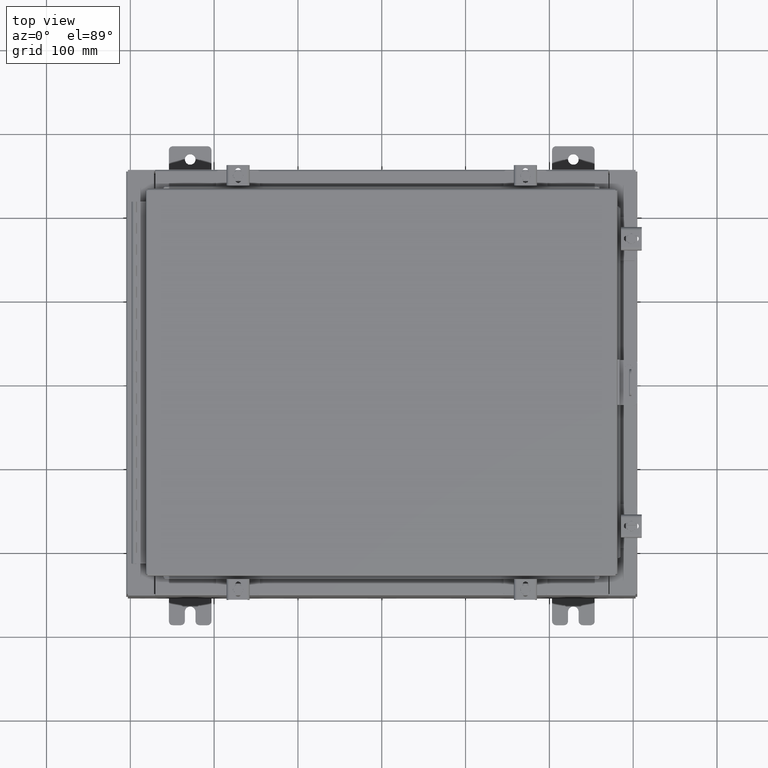
[diagram: clean part render]
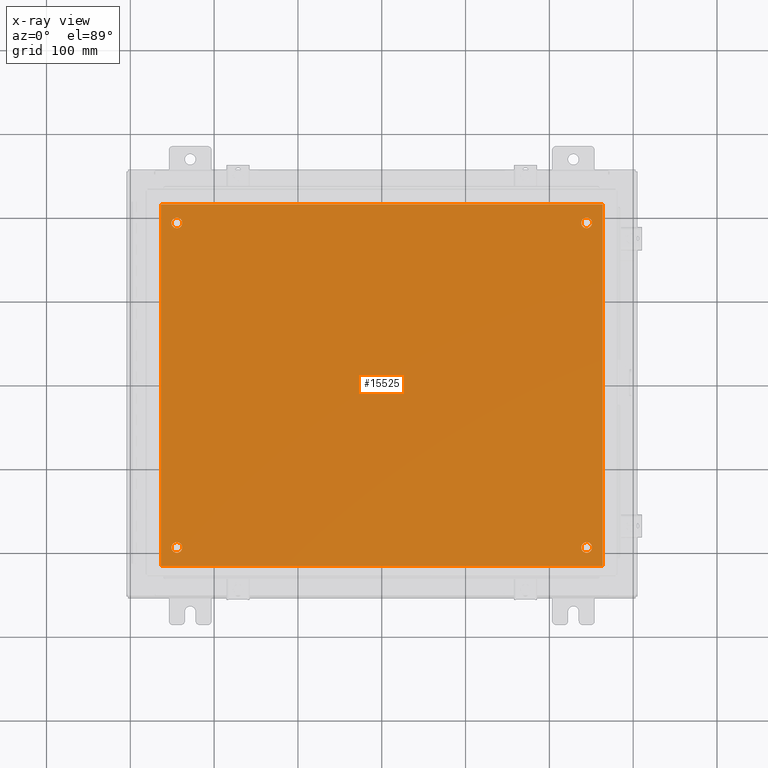
[diagram: x-ray — body ghosted, one internal face saturated and labeled with its STEP entity id]
A machine part, top view, then the same camera in x-ray: the body is ghosted and one INTERNAL B-rep face — a face not visible from any outside direction — is saturated and labeled: STEP entity #15525.
In plain terms, the highlighted planar face has unit normal (0, 0, -1).
Its self-contained STEP definition (entity closure, byte-faithful):
#83 = AXIS2_PLACEMENT_3D ( 'NONE', #26273, #12641, #28555 ) ;
#87 = EDGE_LOOP ( 'NONE', ( #1143, #1504 ) ) ;
#1143 = ORIENTED_EDGE ( 'NONE', *, *, #6088, .T. ) ;
#1504 = ORIENTED_EDGE ( 'NONE', *, *, #2701, .T. ) ;
#1509 = FACE_BOUND ( 'NONE', #87, .T. ) ;
#2298 = AXIS2_PLACEMENT_3D ( 'NONE', #10621, #26551, #12912 ) ;
#2330 = CARTESIAN_POINT ( 'NONE',  ( 10.38300000000000100, 8.499999999999998200, -0.1039999999999999800 ) ) ;
#2395 = CARTESIAN_POINT ( 'NONE',  ( -10.38299999999999900, 8.499999999999998200, -0.1040000000000009100 ) ) ;
#2701 = EDGE_CURVE ( 'NONE', #10635, #28330, #18963, .T. ) ;
#3080 = ORIENTED_EDGE ( 'NONE', *, *, #6141, .T. ) ;
#3115 = VERTEX_POINT ( 'NONE', #10288 ) ;
#3241 = DIRECTION ( 'NONE',  ( -1.000000000000000000, -0.0000000000000000000, -0.0000000000000000000 ) ) ;
#3953 = DIRECTION ( 'NONE',  ( -0.0000000000000000000, -0.0000000000000000000, 1.000000000000000000 ) ) ;
#4501 = CIRCLE ( 'NONE', #14886, 0.2500000000000008900 ) ;
#4683 = CARTESIAN_POINT ( 'NONE',  ( 0.0000000000000000000, 0.0000000000000000000, -0.1039999999999999800 ) ) ;
#4686 = DIRECTION ( 'NONE',  ( 1.000000000000000000, 0.0000000000000000000, 0.0000000000000000000 ) ) ;
#4850 = VERTEX_POINT ( 'NONE', #23736 ) ;
#5331 = AXIS2_PLACEMENT_3D ( 'NONE', #17600, #3953, #19861 ) ;
#5615 = VERTEX_POINT ( 'NONE', #18031 ) ;
#5903 = ORIENTED_EDGE ( 'NONE', *, *, #18976, .F. ) ;
#6088 = EDGE_CURVE ( 'NONE', #28330, #10635, #6307, .T. ) ;
#6141 = EDGE_CURVE ( 'NONE', #3115, #5615, #10251, .T. ) ;
#6155 = CIRCLE ( 'NONE', #12159, 0.2500000000000008900 ) ;
#6286 = CARTESIAN_POINT ( 'NONE',  ( -10.38299999999999900, -8.500000000000000000, -0.1040000000000009100 ) ) ;
#6305 = ORIENTED_EDGE ( 'NONE', *, *, #22340, .F. ) ;
#6307 = CIRCLE ( 'NONE', #2298, 0.2500000000000008900 ) ;
#6580 = CARTESIAN_POINT ( 'NONE',  ( -9.625000000000001800, 7.624999999999998200, -0.1039999999999999800 ) ) ;
#6856 = PLANE ( 'NONE',  #14330 ) ;
#6905 = EDGE_CURVE ( 'NONE', #4850, #20422, #4501, .T. ) ;
#7040 = LINE ( 'NONE', #23238, #18452 ) ;
#7173 = CARTESIAN_POINT ( 'NONE',  ( 9.625000000000001800, 7.624999999999998200, -0.1039999999999999800 ) ) ;
#7779 = AXIS2_PLACEMENT_3D ( 'NONE', #29375, #21584, #29479 ) ;
#7815 = CARTESIAN_POINT ( 'NONE',  ( -10.50000000000000000, 8.499999999999998200, -0.1039999999999999800 ) ) ;
#7893 = CARTESIAN_POINT ( 'NONE',  ( 9.625000000000001800, 7.624999999999998200, -0.1039999999999999800 ) ) ;
#8291 = FACE_BOUND ( 'NONE', #10962, .T. ) ;
#8500 = CIRCLE ( 'NONE', #19500, 0.2499999999999998100 ) ;
#8614 = EDGE_LOOP ( 'NONE', ( #3080, #18662 ) ) ;
#8878 = EDGE_CURVE ( 'NONE', #25038, #13571, #8500, .T. ) ;
#8911 = DIRECTION ( 'NONE',  ( -1.000000000000000000, 0.0000000000000000000, 0.0000000000000000000 ) ) ;
#9016 = CARTESIAN_POINT ( 'NONE',  ( -9.625000000000001800, 7.624999999999998200, -0.1039999999999999800 ) ) ;
#9273 = DIRECTION ( 'NONE',  ( -1.000000000000000000, 0.0000000000000000000, -0.0000000000000000000 ) ) ;
#9471 = DIRECTION ( 'NONE',  ( -1.000000000000000000, 0.0000000000000000000, 0.0000000000000000000 ) ) ;
#10159 = DIRECTION ( 'NONE',  ( -1.000000000000000000, 0.0000000000000000000, 0.0000000000000000000 ) ) ;
#10251 = CIRCLE ( 'NONE', #5331, 0.2499999999999998100 ) ;
#10288 = CARTESIAN_POINT ( 'NONE',  ( 9.875000000000003600, -7.624999999999998200, -0.1039999999999999800 ) ) ;
#10621 = CARTESIAN_POINT ( 'NONE',  ( -9.625000000000001800, -7.624999999999998200, -0.1039999999999999800 ) ) ;
#10623 = CIRCLE ( 'NONE', #83, 0.2499999999999998100 ) ;
#10635 = VERTEX_POINT ( 'NONE', #27796 ) ;
#10962 = EDGE_LOOP ( 'NONE', ( #18724, #20871 ) ) ;
#10990 = VECTOR ( 'NONE', #4686, 39.37007874015748100 ) ;
#11281 = DIRECTION ( 'NONE',  ( -1.000000000000000000, 0.0000000000000000000, 0.0000000000000000000 ) ) ;
#11497 = CARTESIAN_POINT ( 'NONE',  ( 9.375000000000001800, 7.624999999999998200, -0.1039999999999999800 ) ) ;
#11995 = DIRECTION ( 'NONE',  ( 0.0000000000000000000, -1.000000000000000000, 0.0000000000000000000 ) ) ;
#12159 = AXIS2_PLACEMENT_3D ( 'NONE', #9016, #24928, #11281 ) ;
#12357 = VERTEX_POINT ( 'NONE', #2330 ) ;
#12641 = DIRECTION ( 'NONE',  ( -0.0000000000000000000, -0.0000000000000000000, 1.000000000000000000 ) ) ;
#12798 = AXIS2_PLACEMENT_3D ( 'NONE', #7173, #23073, #9471 ) ;
#12912 = DIRECTION ( 'NONE',  ( -1.000000000000000000, 0.0000000000000000000, 0.0000000000000000000 ) ) ;
#12921 = VECTOR ( 'NONE', #18664, 39.37007874015748100 ) ;
#13089 = VECTOR ( 'NONE', #3241, 39.37007874015748100 ) ;
#13571 = VERTEX_POINT ( 'NONE', #11497 ) ;
#13615 = FACE_BOUND ( 'NONE', #8614, .T. ) ;
#14330 = AXIS2_PLACEMENT_3D ( 'NONE', #4683, #22886, #9273 ) ;
#14886 = AXIS2_PLACEMENT_3D ( 'NONE', #6580, #22512, #8911 ) ;
#15041 = EDGE_CURVE ( 'NONE', #19908, #12357, #25034, .T. ) ;
#15502 = CARTESIAN_POINT ( 'NONE',  ( 9.875000000000003600, 7.624999999999998200, -0.1039999999999999800 ) ) ;
#15525 = ADVANCED_FACE ( 'NONE', ( #1509, #13615, #8291, #25010, #18964 ), #6856, .T. ) ;
#15544 = EDGE_CURVE ( 'NONE', #13571, #25038, #18253, .T. ) ;
#16375 = CARTESIAN_POINT ( 'NONE',  ( 10.38300000000000100, -8.500000000000000000, -0.1040000000000009100 ) ) ;
#16821 = CARTESIAN_POINT ( 'NONE',  ( 10.38300000000000100, -8.500000000000000000, -0.1039999999999999800 ) ) ;
#17074 = LINE ( 'NONE', #22790, #10990 ) ;
#17600 = CARTESIAN_POINT ( 'NONE',  ( 9.625000000000001800, -7.624999999999998200, -0.1039999999999999800 ) ) ;
#18031 = CARTESIAN_POINT ( 'NONE',  ( 9.375000000000001800, -7.624999999999998200, -0.1039999999999999800 ) ) ;
#18253 = CIRCLE ( 'NONE', #12798, 0.2499999999999998100 ) ;
#18452 = VECTOR ( 'NONE', #11995, 39.37007874015748100 ) ;
#18662 = ORIENTED_EDGE ( 'NONE', *, *, #23037, .T. ) ;
#18664 = DIRECTION ( 'NONE',  ( 0.0000000000000000000, 1.000000000000000000, 0.0000000000000000000 ) ) ;
#18724 = ORIENTED_EDGE ( 'NONE', *, *, #8878, .T. ) ;
#18949 = CARTESIAN_POINT ( 'NONE',  ( -9.375000000000001800, -7.624999999999998200, -0.1039999999999999800 ) ) ;
#18963 = CIRCLE ( 'NONE', #7779, 0.2500000000000008900 ) ;
#18964 = FACE_OUTER_BOUND ( 'NONE', #22106, .T. ) ;
#18976 = EDGE_CURVE ( 'NONE', #12357, #21617, #19171, .T. ) ;
#19171 = LINE ( 'NONE', #7815, #13089 ) ;
#19204 = ORIENTED_EDGE ( 'NONE', *, *, #6905, .T. ) ;
#19500 = AXIS2_PLACEMENT_3D ( 'NONE', #7893, #23796, #10159 ) ;
#19861 = DIRECTION ( 'NONE',  ( -1.000000000000000000, 0.0000000000000000000, 0.0000000000000000000 ) ) ;
#19908 = VERTEX_POINT ( 'NONE', #16821 ) ;
#20422 = VERTEX_POINT ( 'NONE', #25640 ) ;
#20543 = ORIENTED_EDGE ( 'NONE', *, *, #26127, .T. ) ;
#20871 = ORIENTED_EDGE ( 'NONE', *, *, #15544, .T. ) ;
#21584 = DIRECTION ( 'NONE',  ( -0.0000000000000000000, -0.0000000000000000000, 1.000000000000000000 ) ) ;
#21617 = VERTEX_POINT ( 'NONE', #2395 ) ;
#22106 = EDGE_LOOP ( 'NONE', ( #22127, #6305, #5903, #28339 ) ) ;
#22127 = ORIENTED_EDGE ( 'NONE', *, *, #22693, .F. ) ;
#22340 = EDGE_CURVE ( 'NONE', #21617, #23779, #7040, .T. ) ;
#22512 = DIRECTION ( 'NONE',  ( -0.0000000000000000000, -0.0000000000000000000, 1.000000000000000000 ) ) ;
#22693 = EDGE_CURVE ( 'NONE', #23779, #19908, #17074, .T. ) ;
#22790 = CARTESIAN_POINT ( 'NONE',  ( -10.50000000000000000, -8.500000000000000000, -0.1039999999999999800 ) ) ;
#22886 = DIRECTION ( 'NONE',  ( 0.0000000000000000000, 0.0000000000000000000, -1.000000000000000000 ) ) ;
#23037 = EDGE_CURVE ( 'NONE', #5615, #3115, #10623, .T. ) ;
#23073 = DIRECTION ( 'NONE',  ( -0.0000000000000000000, -0.0000000000000000000, 1.000000000000000000 ) ) ;
#23238 = CARTESIAN_POINT ( 'NONE',  ( -10.38299999999999900, 8.499999999999998200, -0.1040000000000009100 ) ) ;
#23736 = CARTESIAN_POINT ( 'NONE',  ( -9.875000000000003600, 7.624999999999998200, -0.1039999999999999800 ) ) ;
#23779 = VERTEX_POINT ( 'NONE', #6286 ) ;
#23796 = DIRECTION ( 'NONE',  ( -0.0000000000000000000, -0.0000000000000000000, 1.000000000000000000 ) ) ;
#24928 = DIRECTION ( 'NONE',  ( -0.0000000000000000000, -0.0000000000000000000, 1.000000000000000000 ) ) ;
#25010 = FACE_BOUND ( 'NONE', #26193, .T. ) ;
#25034 = LINE ( 'NONE', #16375, #12921 ) ;
#25038 = VERTEX_POINT ( 'NONE', #15502 ) ;
#25640 = CARTESIAN_POINT ( 'NONE',  ( -9.375000000000001800, 7.624999999999998200, -0.1039999999999999800 ) ) ;
#26127 = EDGE_CURVE ( 'NONE', #20422, #4850, #6155, .T. ) ;
#26193 = EDGE_LOOP ( 'NONE', ( #20543, #19204 ) ) ;
#26273 = CARTESIAN_POINT ( 'NONE',  ( 9.625000000000001800, -7.624999999999998200, -0.1039999999999999800 ) ) ;
#26551 = DIRECTION ( 'NONE',  ( -0.0000000000000000000, -0.0000000000000000000, 1.000000000000000000 ) ) ;
#27796 = CARTESIAN_POINT ( 'NONE',  ( -9.875000000000003600, -7.624999999999998200, -0.1039999999999999800 ) ) ;
#28330 = VERTEX_POINT ( 'NONE', #18949 ) ;
#28339 = ORIENTED_EDGE ( 'NONE', *, *, #15041, .F. ) ;
#28555 = DIRECTION ( 'NONE',  ( -1.000000000000000000, 0.0000000000000000000, 0.0000000000000000000 ) ) ;
#29375 = CARTESIAN_POINT ( 'NONE',  ( -9.625000000000001800, -7.624999999999998200, -0.1039999999999999800 ) ) ;
#29479 = DIRECTION ( 'NONE',  ( -1.000000000000000000, 0.0000000000000000000, 0.0000000000000000000 ) ) ;